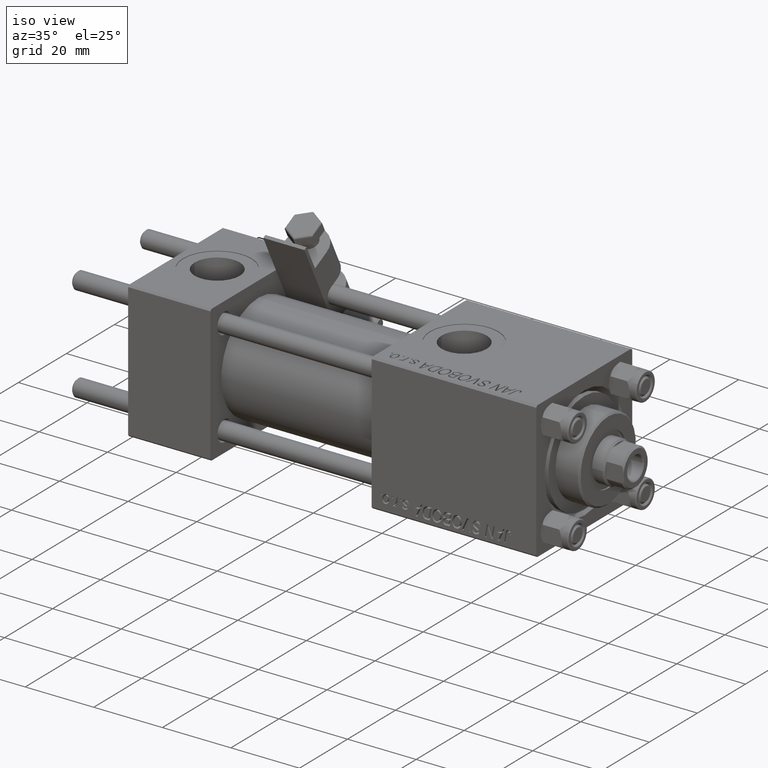
[diagram: clean part render]
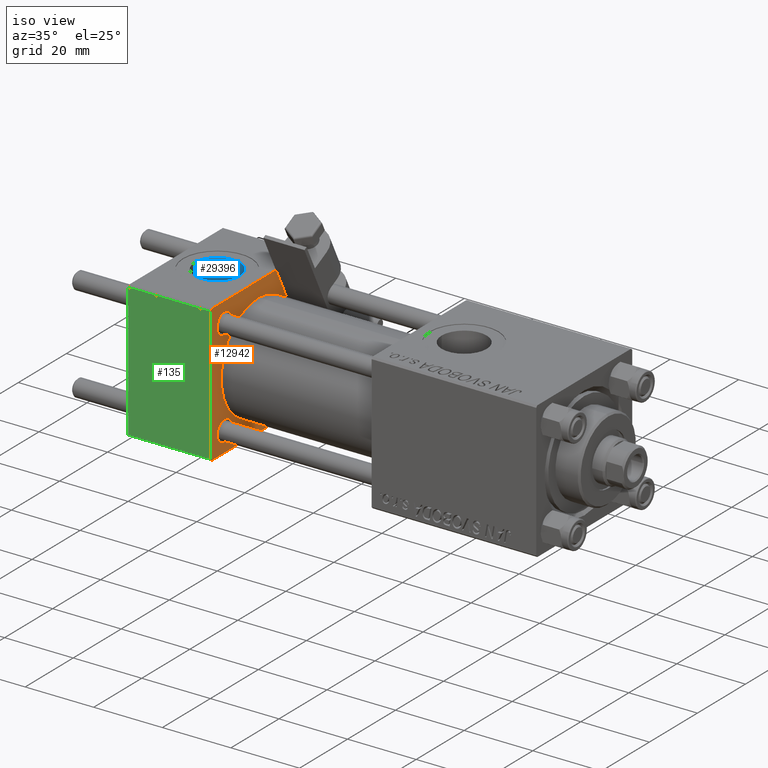
[diagram: same view with three faces highlighted in distinct colors, each labeled with its STEP entity id]
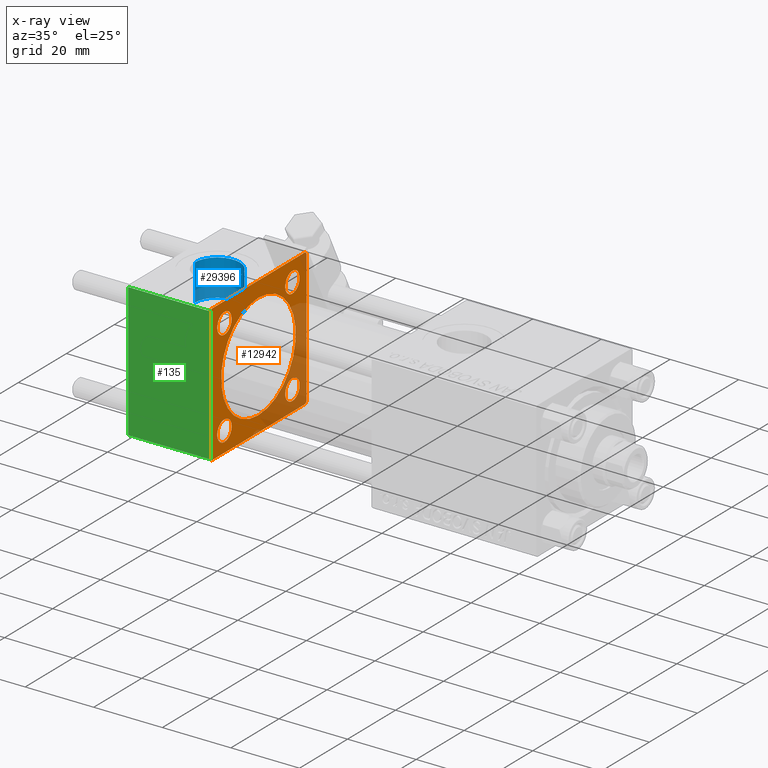
[diagram: x-ray of the same camera — body ghosted, the three highlighted faces saturated]
A machine part, iso view with three faces highlighted in distinct colors.
The next image is the same camera in x-ray (body ghosted, the three faces saturated) — at least one of them is partly hidden behind the body in this view.
Their STEP definitions:

[orange] entity #12942 — the highlighted planar face has unit normal (-1, 0, 0).
#17 = CARTESIAN_POINT ( 'NONE',  ( 24.00000000000000000, -14.14999999999999503, 17.15000000000000568 ) ) ;
#43 = ORIENTED_EDGE ( 'NONE', *, *, #48264, .F. ) ;
#58 = LINE ( 'NONE', #15761, #41374 ) ;
#243 = CIRCLE ( 'NONE', #19153, 3.000000000000000888 ) ;
#426 = DIRECTION ( 'NONE',  ( 0.000000000000000000, 0.000000000000000000, 1.000000000000000000 ) ) ;
#546 = VERTEX_POINT ( 'NONE', #42792 ) ;
#1541 = VECTOR ( 'NONE', #40848, 999.9999999999998863 ) ;
#3514 = DIRECTION ( 'NONE',  ( -0.000000000000000000, 0.000000000000000000, 1.000000000000000000 ) ) ;
#3759 = CARTESIAN_POINT ( 'NONE',  ( 24.00000000000000000, 20.00000000000000000, 19.49999999999999289 ) ) ;
#3809 = AXIS2_PLACEMENT_3D ( 'NONE', #33165, #5914, #48851 ) ;
#3953 = DIRECTION ( 'NONE',  ( 0.000000000000000000, 0.000000000000000000, 1.000000000000000000 ) ) ;
#4800 = ORIENTED_EDGE ( 'NONE', *, *, #36640, .T. ) ;
#4936 = VERTEX_POINT ( 'NONE', #47085 ) ;
#5215 = EDGE_CURVE ( 'NONE', #28645, #36608, #243, .T. ) ;
#5368 = VERTEX_POINT ( 'NONE', #11301 ) ;
#5419 = DIRECTION ( 'NONE',  ( -1.000000000000000000, -0.000000000000000000, -0.000000000000000000 ) ) ;
#5445 = VECTOR ( 'NONE', #50863, 1000.000000000000000 ) ;
#5595 = EDGE_CURVE ( 'NONE', #39187, #6437, #36406, .T. ) ;
#5914 = DIRECTION ( 'NONE',  ( 1.000000000000000000, 0.000000000000000000, 0.000000000000000000 ) ) ;
#6199 = DIRECTION ( 'NONE',  ( 0.000000000000000000, -1.000000000000000000, 1.734723475976807094E-16 ) ) ;
#6407 = EDGE_CURVE ( 'NONE', #7155, #33065, #32669, .T. ) ;
#6437 = VERTEX_POINT ( 'NONE', #9517 ) ;
#6456 = DIRECTION ( 'NONE',  ( -1.000000000000000000, -0.000000000000000000, -0.000000000000000000 ) ) ;
#6804 = DIRECTION ( 'NONE',  ( 0.000000000000000000, 0.000000000000000000, 1.000000000000000000 ) ) ;
#7131 = EDGE_CURVE ( 'NONE', #44631, #20566, #26582, .T. ) ;
#7155 = VERTEX_POINT ( 'NONE', #19059 ) ;
#7887 = CIRCLE ( 'NONE', #3809, 15.50000000000000000 ) ;
#8591 = ORIENTED_EDGE ( 'NONE', *, *, #40050, .T. ) ;
#8609 = AXIS2_PLACEMENT_3D ( 'NONE', #9419, #35649, #426 ) ;
#9125 = ORIENTED_EDGE ( 'NONE', *, *, #21672, .T. ) ;
#9282 = EDGE_LOOP ( 'NONE', ( #43, #21061 ) ) ;
#9419 = CARTESIAN_POINT ( 'NONE',  ( 24.00000000000000000, 14.14999999999999858, -14.15000000000000036 ) ) ;
#9517 = CARTESIAN_POINT ( 'NONE',  ( 24.00000000000000000, 14.14999999999999858, 17.14999999999997726 ) ) ;
#9544 = ORIENTED_EDGE ( 'NONE', *, *, #6407, .T. ) ;
#9830 = EDGE_CURVE ( 'NONE', #20246, #24614, #29605, .T. ) ;
#10287 = DIRECTION ( 'NONE',  ( -1.000000000000000000, -0.000000000000000000, -0.000000000000000000 ) ) ;
#10501 = EDGE_CURVE ( 'NONE', #15748, #546, #24249, .T. ) ;
#10754 = CARTESIAN_POINT ( 'NONE',  ( 24.00000000000000000, -19.50000000000000711, -20.00000000000000000 ) ) ;
#11192 = CIRCLE ( 'NONE', #16996, 2.999999999999976463 ) ;
#11301 = CARTESIAN_POINT ( 'NONE',  ( 24.00000000000000000, 14.14999999999999858, -11.15000000000002700 ) ) ;
#11358 = ORIENTED_EDGE ( 'NONE', *, *, #13139, .T. ) ;
#11367 = EDGE_LOOP ( 'NONE', ( #4800, #27594 ) ) ;
#11438 = EDGE_LOOP ( 'NONE', ( #11358, #24748 ) ) ;
#11651 = ORIENTED_EDGE ( 'NONE', *, *, #48423, .T. ) ;
#11752 = AXIS2_PLACEMENT_3D ( 'NONE', #37114, #49196, #41976 ) ;
#12942 = ADVANCED_FACE ( 'NONE', ( #18708, #18454, #34118, #14841, #23839, #34880 ), #18953, .F. ) ;
#13139 = EDGE_CURVE ( 'NONE', #15611, #5368, #26652, .T. ) ;
#13739 = ORIENTED_EDGE ( 'NONE', *, *, #37538, .F. ) ;
#14233 = AXIS2_PLACEMENT_3D ( 'NONE', #21574, #46133, #6804 ) ;
#14730 = AXIS2_PLACEMENT_3D ( 'NONE', #42780, #43795, #3953 ) ;
#14841 = FACE_BOUND ( 'NONE', #49674, .T. ) ;
#15050 = LINE ( 'NONE', #30724, #42944 ) ;
#15611 = VERTEX_POINT ( 'NONE', #35406 ) ;
#15748 = VERTEX_POINT ( 'NONE', #37681 ) ;
#15761 = CARTESIAN_POINT ( 'NONE',  ( 24.00000000000000000, 20.00000000000000000, 20.00000000000000000 ) ) ;
#16743 = DIRECTION ( 'NONE',  ( 0.000000000000000000, 8.673617379884036705E-17, -1.000000000000000000 ) ) ;
#16856 = VECTOR ( 'NONE', #6199, 1000.000000000000000 ) ;
#16996 = AXIS2_PLACEMENT_3D ( 'NONE', #33168, #5419, #18247 ) ;
#17009 = CARTESIAN_POINT ( 'NONE',  ( 24.00000000000000000, -20.00000000000000355, 19.99999999999998934 ) ) ;
#18056 = CARTESIAN_POINT ( 'NONE',  ( 24.00000000000000000, -14.14999999999999503, 11.15000000000000391 ) ) ;
#18098 = DIRECTION ( 'NONE',  ( 1.000000000000000000, 0.000000000000000000, 0.000000000000000000 ) ) ;
#18247 = DIRECTION ( 'NONE',  ( 0.000000000000000000, 0.000000000000000000, 1.000000000000000000 ) ) ;
#18454 = FACE_BOUND ( 'NONE', #11438, .T. ) ;
#18555 = CARTESIAN_POINT ( 'NONE',  ( 24.00000000000000000, -14.14999999999999503, 14.15000000000000391 ) ) ;
#18708 = FACE_BOUND ( 'NONE', #49426, .T. ) ;
#18886 = EDGE_CURVE ( 'NONE', #33065, #24614, #50078, .T. ) ;
#18953 = PLANE ( 'NONE',  #20113 ) ;
#19059 = CARTESIAN_POINT ( 'NONE',  ( 24.00000000000000000, -20.00000000000000355, 19.49999999999998224 ) ) ;
#19153 = AXIS2_PLACEMENT_3D ( 'NONE', #33678, #10287, #25973 ) ;
#19479 = CARTESIAN_POINT ( 'NONE',  ( 24.00000000000000000, 0.000000000000000000, 0.000000000000000000 ) ) ;
#20113 = AXIS2_PLACEMENT_3D ( 'NONE', #19479, #50826, #3514 ) ;
#20246 = VERTEX_POINT ( 'NONE', #44046 ) ;
#20566 = VERTEX_POINT ( 'NONE', #18056 ) ;
#21061 = ORIENTED_EDGE ( 'NONE', *, *, #10501, .F. ) ;
#21574 = CARTESIAN_POINT ( 'NONE',  ( 24.00000000000000000, 14.14999999999999858, 14.15000000000000036 ) ) ;
#21672 = EDGE_CURVE ( 'NONE', #28015, #4936, #44689, .T. ) ;
#21724 = CARTESIAN_POINT ( 'NONE',  ( 24.00000000000000000, 0.000000000000000000, 0.000000000000000000 ) ) ;
#21912 = CARTESIAN_POINT ( 'NONE',  ( 24.00000000000000000, 14.14999999999999858, -14.15000000000000036 ) ) ;
#22135 = VERTEX_POINT ( 'NONE', #40917 ) ;
#23580 = ORIENTED_EDGE ( 'NONE', *, *, #18886, .T. ) ;
#23839 = FACE_BOUND ( 'NONE', #9282, .T. ) ;
#24109 = EDGE_CURVE ( 'NONE', #36608, #28645, #36899, .T. ) ;
#24249 = CIRCLE ( 'NONE', #39027, 15.50000000000000000 ) ;
#24351 = ORIENTED_EDGE ( 'NONE', *, *, #5215, .T. ) ;
#24614 = VERTEX_POINT ( 'NONE', #32688 ) ;
#24748 = ORIENTED_EDGE ( 'NONE', *, *, #37733, .T. ) ;
#24991 = AXIS2_PLACEMENT_3D ( 'NONE', #18555, #30127, #46035 ) ;
#25164 = CARTESIAN_POINT ( 'NONE',  ( 24.00000000000000000, 19.50000000000000000, 20.00000000000000000 ) ) ;
#25973 = DIRECTION ( 'NONE',  ( 0.000000000000000000, 0.000000000000000000, 1.000000000000000000 ) ) ;
#26001 = DIRECTION ( 'NONE',  ( 0.000000000000000000, 0.000000000000000000, 1.000000000000000000 ) ) ;
#26399 = VERTEX_POINT ( 'NONE', #49457 ) ;
#26582 = CIRCLE ( 'NONE', #24991, 3.000000000000000888 ) ;
#26646 = ORIENTED_EDGE ( 'NONE', *, *, #36420, .T. ) ;
#26652 = CIRCLE ( 'NONE', #8609, 2.999999999999976463 ) ;
#27208 = LINE ( 'NONE', #34918, #5445 ) ;
#27594 = ORIENTED_EDGE ( 'NONE', *, *, #7131, .T. ) ;
#28015 = VERTEX_POINT ( 'NONE', #3759 ) ;
#28209 = CIRCLE ( 'NONE', #11752, 3.000000000000000888 ) ;
#28645 = VERTEX_POINT ( 'NONE', #50838 ) ;
#29605 = LINE ( 'NONE', #45519, #16856 ) ;
#29847 = CIRCLE ( 'NONE', #44640, 2.999999999999976463 ) ;
#30127 = DIRECTION ( 'NONE',  ( -1.000000000000000000, -0.000000000000000000, -0.000000000000000000 ) ) ;
#30431 = ORIENTED_EDGE ( 'NONE', *, *, #9830, .F. ) ;
#30453 = ORIENTED_EDGE ( 'NONE', *, *, #44829, .T. ) ;
#30724 = CARTESIAN_POINT ( 'NONE',  ( 24.00000000000000000, 20.00000000000000000, 20.00000000000000000 ) ) ;
#30904 = ORIENTED_EDGE ( 'NONE', *, *, #24109, .T. ) ;
#31432 = DIRECTION ( 'NONE',  ( 0.000000000000000000, 0.000000000000000000, -1.000000000000000000 ) ) ;
#32669 = LINE ( 'NONE', #17009, #38877 ) ;
#32688 = CARTESIAN_POINT ( 'NONE',  ( 24.00000000000000000, -19.50000000000000711, -20.00000000000000000 ) ) ;
#32873 = CARTESIAN_POINT ( 'NONE',  ( 24.00000000000000000, -20.00000000000000355, 19.49999999999998224 ) ) ;
#33065 = VERTEX_POINT ( 'NONE', #49662 ) ;
#33165 = CARTESIAN_POINT ( 'NONE',  ( 24.00000000000000000, 0.000000000000000000, 0.000000000000000000 ) ) ;
#33168 = CARTESIAN_POINT ( 'NONE',  ( 24.00000000000000000, 14.14999999999999858, 14.15000000000000036 ) ) ;
#33678 = CARTESIAN_POINT ( 'NONE',  ( 24.00000000000000000, -14.14999999999999503, -14.15000000000000391 ) ) ;
#33762 = DIRECTION ( 'NONE',  ( 0.000000000000000000, 0.000000000000000000, 1.000000000000000000 ) ) ;
#34118 = FACE_BOUND ( 'NONE', #11367, .T. ) ;
#34880 = FACE_OUTER_BOUND ( 'NONE', #49269, .T. ) ;
#34918 = CARTESIAN_POINT ( 'NONE',  ( 24.00000000000000000, 20.00000000000000000, -19.50000000000002132 ) ) ;
#35406 = CARTESIAN_POINT ( 'NONE',  ( 24.00000000000000000, 14.14999999999999858, -17.14999999999997726 ) ) ;
#35649 = DIRECTION ( 'NONE',  ( -1.000000000000000000, -0.000000000000000000, -0.000000000000000000 ) ) ;
#36406 = CIRCLE ( 'NONE', #14233, 2.999999999999976463 ) ;
#36420 = EDGE_CURVE ( 'NONE', #4936, #26399, #15050, .T. ) ;
#36608 = VERTEX_POINT ( 'NONE', #45084 ) ;
#36640 = EDGE_CURVE ( 'NONE', #20566, #44631, #28209, .T. ) ;
#36899 = CIRCLE ( 'NONE', #14730, 3.000000000000000888 ) ;
#37114 = CARTESIAN_POINT ( 'NONE',  ( 24.00000000000000000, -14.14999999999999503, 14.15000000000000391 ) ) ;
#37520 = VECTOR ( 'NONE', #46223, 1000.000000000000000 ) ;
#37538 = EDGE_CURVE ( 'NONE', #28015, #22135, #58, .T. ) ;
#37681 = CARTESIAN_POINT ( 'NONE',  ( 24.00000000000000000, 1.898202538678397557E-15, -15.50000000000000000 ) ) ;
#37733 = EDGE_CURVE ( 'NONE', #5368, #15611, #29847, .T. ) ;
#37898 = CARTESIAN_POINT ( 'NONE',  ( 24.00000000000000000, 14.14999999999999858, 11.15000000000002700 ) ) ;
#38877 = VECTOR ( 'NONE', #16743, 1000.000000000000000 ) ;
#39027 = AXIS2_PLACEMENT_3D ( 'NONE', #21724, #18098, #33762 ) ;
#39187 = VERTEX_POINT ( 'NONE', #37898 ) ;
#40050 = EDGE_CURVE ( 'NONE', #26399, #7155, #40596, .T. ) ;
#40596 = LINE ( 'NONE', #32873, #47162 ) ;
#40848 = DIRECTION ( 'NONE',  ( 0.000000000000000000, -0.7071067811865425767, 0.7071067811865525687 ) ) ;
#40917 = CARTESIAN_POINT ( 'NONE',  ( 24.00000000000000000, 20.00000000000000000, -19.50000000000002132 ) ) ;
#41374 = VECTOR ( 'NONE', #31432, 1000.000000000000000 ) ;
#41976 = DIRECTION ( 'NONE',  ( 0.000000000000000000, 0.000000000000000000, 1.000000000000000000 ) ) ;
#42780 = CARTESIAN_POINT ( 'NONE',  ( 24.00000000000000000, -14.14999999999999503, -14.15000000000000391 ) ) ;
#42792 = CARTESIAN_POINT ( 'NONE',  ( 24.00000000000000000, 0.000000000000000000, 15.50000000000000000 ) ) ;
#42944 = VECTOR ( 'NONE', #46402, 1000.000000000000000 ) ;
#43795 = DIRECTION ( 'NONE',  ( -1.000000000000000000, -0.000000000000000000, -0.000000000000000000 ) ) ;
#43938 = DIRECTION ( 'NONE',  ( -0.000000000000000000, -0.7071067811865500152, -0.7071067811865451302 ) ) ;
#44046 = CARTESIAN_POINT ( 'NONE',  ( 24.00000000000000000, 19.50000000000000711, -20.00000000000000711 ) ) ;
#44631 = VERTEX_POINT ( 'NONE', #17 ) ;
#44640 = AXIS2_PLACEMENT_3D ( 'NONE', #21912, #6456, #26001 ) ;
#44689 = LINE ( 'NONE', #25164, #1541 ) ;
#44829 = EDGE_CURVE ( 'NONE', #6437, #39187, #11192, .T. ) ;
#45084 = CARTESIAN_POINT ( 'NONE',  ( 24.00000000000000000, -14.14999999999999503, -11.15000000000000391 ) ) ;
#45519 = CARTESIAN_POINT ( 'NONE',  ( 24.00000000000000000, 20.00000000000000000, -20.00000000000000711 ) ) ;
#46035 = DIRECTION ( 'NONE',  ( 0.000000000000000000, 0.000000000000000000, 1.000000000000000000 ) ) ;
#46133 = DIRECTION ( 'NONE',  ( -1.000000000000000000, -0.000000000000000000, -0.000000000000000000 ) ) ;
#46223 = DIRECTION ( 'NONE',  ( 0.000000000000000000, 0.7071067811865401342, -0.7071067811865549002 ) ) ;
#46402 = DIRECTION ( 'NONE',  ( 0.000000000000000000, -1.000000000000000000, -2.602085213965210149E-16 ) ) ;
#47085 = CARTESIAN_POINT ( 'NONE',  ( 24.00000000000000000, 19.50000000000000000, 20.00000000000000000 ) ) ;
#47162 = VECTOR ( 'NONE', #43938, 1000.000000000000114 ) ;
#48264 = EDGE_CURVE ( 'NONE', #546, #15748, #7887, .T. ) ;
#48423 = EDGE_CURVE ( 'NONE', #20246, #22135, #27208, .T. ) ;
#48851 = DIRECTION ( 'NONE',  ( 0.000000000000000000, 0.000000000000000000, 1.000000000000000000 ) ) ;
#49195 = ORIENTED_EDGE ( 'NONE', *, *, #5595, .T. ) ;
#49196 = DIRECTION ( 'NONE',  ( -1.000000000000000000, -0.000000000000000000, -0.000000000000000000 ) ) ;
#49269 = EDGE_LOOP ( 'NONE', ( #30431, #11651, #13739, #9125, #26646, #8591, #9544, #23580 ) ) ;
#49426 = EDGE_LOOP ( 'NONE', ( #24351, #30904 ) ) ;
#49457 = CARTESIAN_POINT ( 'NONE',  ( 24.00000000000000000, -19.49999999999999289, 19.99999999999998934 ) ) ;
#49662 = CARTESIAN_POINT ( 'NONE',  ( 24.00000000000000000, -20.00000000000000000, -19.49999999999999645 ) ) ;
#49674 = EDGE_LOOP ( 'NONE', ( #49195, #30453 ) ) ;
#50078 = LINE ( 'NONE', #10754, #37520 ) ;
#50826 = DIRECTION ( 'NONE',  ( -1.000000000000000000, 0.000000000000000000, -0.000000000000000000 ) ) ;
#50838 = CARTESIAN_POINT ( 'NONE',  ( 24.00000000000000000, -14.14999999999999503, -17.15000000000000568 ) ) ;
#50863 = DIRECTION ( 'NONE',  ( -0.000000000000000000, 0.7071067811865524577, 0.7071067811865426878 ) ) ;

[blue] entity #29396 — the highlighted cylindrical surface (edge-blend (fillet) strip) has radius 6.58 mm, axis along (0, 0, 1).
#2315 = VERTEX_POINT ( 'NONE', #29175 ) ;
#2650 = VERTEX_POINT ( 'NONE', #37797 ) ;
#3365 = CIRCLE ( 'NONE', #21504, 6.579999999999999183 ) ;
#6633 = CYLINDRICAL_SURFACE ( 'NONE', #15764, 6.579999999999999183 ) ;
#7973 = DIRECTION ( 'NONE',  ( 0.000000000000000000, 0.000000000000000000, 1.000000000000000000 ) ) ;
#9683 = CARTESIAN_POINT ( 'NONE',  ( 5.420000000000000817, 8.058175938389596335E-16, 9.165987261146492315 ) ) ;
#15534 = CARTESIAN_POINT ( 'NONE',  ( 12.00000000000000000, 1.540743955509788682E-30, 9.165987261146492315 ) ) ;
#15764 = AXIS2_PLACEMENT_3D ( 'NONE', #17983, #33147, #22089 ) ;
#15908 = VERTEX_POINT ( 'NONE', #9683 ) ;
#17946 = EDGE_CURVE ( 'NONE', #2650, #2315, #49020, .T. ) ;
#17983 = CARTESIAN_POINT ( 'NONE',  ( 12.00000000000000000, 1.540743955509788682E-30, 9.199999999999995737 ) ) ;
#19649 = DIRECTION ( 'NONE',  ( 1.000000000000000000, 0.000000000000000000, 0.000000000000000000 ) ) ;
#19899 = DIRECTION ( 'NONE',  ( -0.000000000000000000, -0.000000000000000000, -1.000000000000000000 ) ) ;
#20980 = DIRECTION ( 'NONE',  ( -0.000000000000000000, -0.000000000000000000, 1.000000000000000000 ) ) ;
#21504 = AXIS2_PLACEMENT_3D ( 'NONE', #15534, #19899, #19649 ) ;
#22059 = DIRECTION ( 'NONE',  ( -0.000000000000000000, -0.000000000000000000, 1.000000000000000000 ) ) ;
#22089 = DIRECTION ( 'NONE',  ( 1.000000000000000000, 0.000000000000000000, 0.000000000000000000 ) ) ;
#22306 = LINE ( 'NONE', #41585, #40791 ) ;
#22338 = FACE_OUTER_BOUND ( 'NONE', #36918, .T. ) ;
#26255 = ORIENTED_EDGE ( 'NONE', *, *, #17946, .T. ) ;
#26340 = ORIENTED_EDGE ( 'NONE', *, *, #32827, .T. ) ;
#29175 = CARTESIAN_POINT ( 'NONE',  ( 5.420000000000000817, 8.058175938389596335E-16, 19.79999999999999716 ) ) ;
#29396 = ADVANCED_FACE ( 'NONE', ( #22338 ), #6633, .F. ) ;
#31884 = CARTESIAN_POINT ( 'NONE',  ( 12.00000000000000000, 1.540743955509788682E-30, 19.79999999999999716 ) ) ;
#31933 = EDGE_CURVE ( 'NONE', #15908, #2315, #44865, .T. ) ;
#32827 = EDGE_CURVE ( 'NONE', #15908, #37106, #3365, .T. ) ;
#33147 = DIRECTION ( 'NONE',  ( -0.000000000000000000, -0.000000000000000000, 1.000000000000000000 ) ) ;
#36918 = EDGE_LOOP ( 'NONE', ( #42539, #26340, #37975, #26255 ) ) ;
#37106 = VERTEX_POINT ( 'NONE', #41614 ) ;
#37797 = CARTESIAN_POINT ( 'NONE',  ( 18.57999999999999829, 1.540743955509788682E-30, 19.79999999999999716 ) ) ;
#37975 = ORIENTED_EDGE ( 'NONE', *, *, #49575, .T. ) ;
#40791 = VECTOR ( 'NONE', #22059, 1000.000000000000000 ) ;
#41198 = VECTOR ( 'NONE', #20980, 1000.000000000000000 ) ;
#41585 = CARTESIAN_POINT ( 'NONE',  ( 18.57999999999999829, 1.540743955509788682E-30, 9.199999999999995737 ) ) ;
#41614 = CARTESIAN_POINT ( 'NONE',  ( 18.57999999999999829, 1.540743955509788682E-30, 9.165987261146492315 ) ) ;
#42539 = ORIENTED_EDGE ( 'NONE', *, *, #31933, .F. ) ;
#44865 = LINE ( 'NONE', #48232, #41198 ) ;
#44904 = AXIS2_PLACEMENT_3D ( 'NONE', #31884, #7973, #47568 ) ;
#47568 = DIRECTION ( 'NONE',  ( 1.000000000000000000, 0.000000000000000000, 0.000000000000000000 ) ) ;
#48232 = CARTESIAN_POINT ( 'NONE',  ( 5.420000000000000817, 8.058175938389596335E-16, 9.199999999999995737 ) ) ;
#49020 = CIRCLE ( 'NONE', #44904, 6.579999999999999183 ) ;
#49575 = EDGE_CURVE ( 'NONE', #37106, #2650, #22306, .T. ) ;

[green] entity #135 — the highlighted planar face has unit normal (0, 1, 0).
#135 = ADVANCED_FACE ( 'NONE', ( #30271 ), #10221, .F. ) ;
#3327 = VERTEX_POINT ( 'NONE', #36955 ) ;
#4645 = CARTESIAN_POINT ( 'NONE',  ( 0.000000000000000000, -20.00000000000000355, 19.49999999999998224 ) ) ;
#6246 = EDGE_CURVE ( 'NONE', #3327, #33065, #39096, .T. ) ;
#6407 = EDGE_CURVE ( 'NONE', #7155, #33065, #32669, .T. ) ;
#7155 = VERTEX_POINT ( 'NONE', #19059 ) ;
#8020 = EDGE_LOOP ( 'NONE', ( #23783, #14515, #21133, #12523 ) ) ;
#10221 = PLANE ( 'NONE',  #41927 ) ;
#10270 = LINE ( 'NONE', #17314, #49156 ) ;
#10976 = DIRECTION ( 'NONE',  ( -0.000000000000000000, 1.000000000000000000, 8.673617379884036705E-17 ) ) ;
#12523 = ORIENTED_EDGE ( 'NONE', *, *, #23303, .T. ) ;
#12821 = VECTOR ( 'NONE', #26481, 1000.000000000000000 ) ;
#13686 = LINE ( 'NONE', #41674, #12821 ) ;
#14515 = ORIENTED_EDGE ( 'NONE', *, *, #6246, .T. ) ;
#15319 = EDGE_CURVE ( 'NONE', #38752, #3327, #13686, .T. ) ;
#16743 = DIRECTION ( 'NONE',  ( 0.000000000000000000, 8.673617379884036705E-17, -1.000000000000000000 ) ) ;
#17009 = CARTESIAN_POINT ( 'NONE',  ( 24.00000000000000000, -20.00000000000000355, 19.99999999999998934 ) ) ;
#17314 = CARTESIAN_POINT ( 'NONE',  ( 24.00000000000000000, -20.00000000000000355, 19.49999999999998224 ) ) ;
#19059 = CARTESIAN_POINT ( 'NONE',  ( 24.00000000000000000, -20.00000000000000355, 19.49999999999998224 ) ) ;
#21133 = ORIENTED_EDGE ( 'NONE', *, *, #6407, .F. ) ;
#21819 = DIRECTION ( 'NONE',  ( 0.000000000000000000, -8.673617379884036705E-17, 1.000000000000000000 ) ) ;
#23303 = EDGE_CURVE ( 'NONE', #7155, #38752, #10270, .T. ) ;
#23676 = DIRECTION ( 'NONE',  ( 1.000000000000000000, 0.000000000000000000, 0.000000000000000000 ) ) ;
#23783 = ORIENTED_EDGE ( 'NONE', *, *, #15319, .T. ) ;
#26481 = DIRECTION ( 'NONE',  ( 0.000000000000000000, 8.673617379884036705E-17, -1.000000000000000000 ) ) ;
#27268 = CARTESIAN_POINT ( 'NONE',  ( 24.00000000000000000, -20.00000000000000000, -19.49999999999999645 ) ) ;
#30021 = CARTESIAN_POINT ( 'NONE',  ( 24.00000000000000000, -20.00000000000000355, 19.99999999999998934 ) ) ;
#30271 = FACE_OUTER_BOUND ( 'NONE', #8020, .T. ) ;
#32218 = DIRECTION ( 'NONE',  ( -1.000000000000000000, 0.000000000000000000, 0.000000000000000000 ) ) ;
#32669 = LINE ( 'NONE', #17009, #38877 ) ;
#33065 = VERTEX_POINT ( 'NONE', #49662 ) ;
#36955 = CARTESIAN_POINT ( 'NONE',  ( 0.000000000000000000, -20.00000000000000000, -19.49999999999999645 ) ) ;
#38752 = VERTEX_POINT ( 'NONE', #4645 ) ;
#38877 = VECTOR ( 'NONE', #16743, 1000.000000000000000 ) ;
#39096 = LINE ( 'NONE', #27268, #50362 ) ;
#41674 = CARTESIAN_POINT ( 'NONE',  ( 0.000000000000000000, -20.00000000000000355, 19.99999999999998934 ) ) ;
#41927 = AXIS2_PLACEMENT_3D ( 'NONE', #30021, #10976, #21819 ) ;
#49156 = VECTOR ( 'NONE', #32218, 1000.000000000000000 ) ;
#49662 = CARTESIAN_POINT ( 'NONE',  ( 24.00000000000000000, -20.00000000000000000, -19.49999999999999645 ) ) ;
#50362 = VECTOR ( 'NONE', #23676, 1000.000000000000000 ) ;